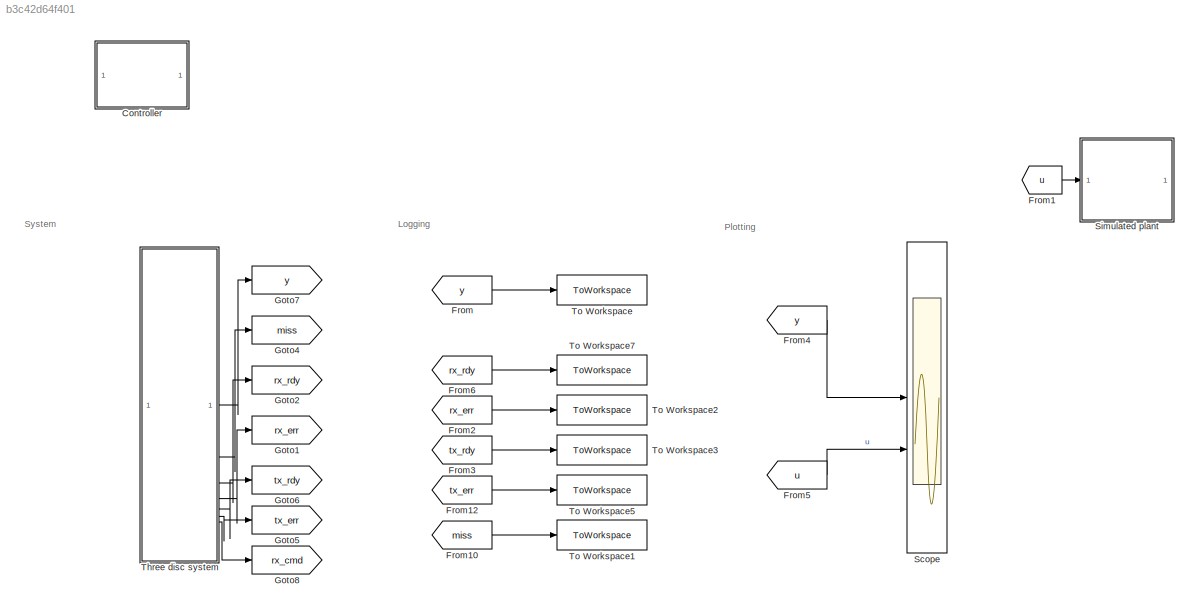
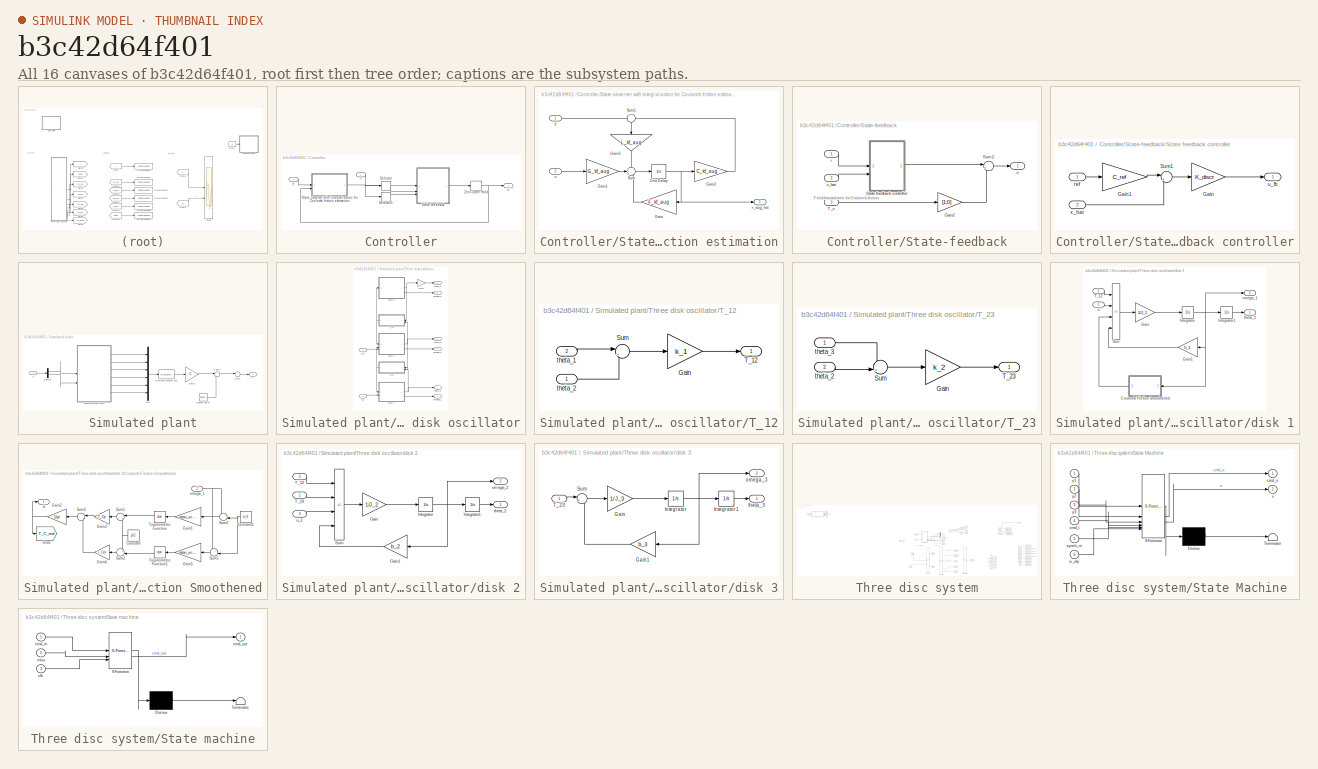
[diagram: thumbnail index - all 16 canvases of the model, root first then tree order]
MODEL slx_b3c42d64f401
KIND model
CONFIG AbsTol = auto
CONFIG EnableMultiTasking = off
CONFIG FixedStep = 0.001
CONFIG MaxStep = auto
CONFIG MinStep = auto
CONFIG RelTol = 1e-3
CONFIG SampleTimeConstraint = Unconstrained
CONFIG SolverName = FixedStepAuto
CONFIG StartTime = 0.0
CONFIG StopTime = 5
BLOCK [SubSystem] Controller
  Commented = on
BLOCK [Selector] Controller/Selector
  IndexOptions = Index vector (dialog)
  Indices = [1:6]
  InputPortWidth = 7
  OutputSizes = 1
BLOCK [Selector] Controller/Selector1
  IndexOptions = Index vector (dialog)
  Indices = [7]
  InputPortWidth = 7
  OutputSizes = 1
BLOCK [SubSystem] Controller/State observer with integral action for Coulomb friction estimation
BLOCK [Gain] Controller/State observer with integral action for Coulomb friction estimation/Gain
  Gain = F_kf_aug
  Multiplication = Matrix(K*u) (u vector)
BLOCK [Gain] Controller/State observer with integral action for Coulomb friction estimation/Gain1
  Gain = G_kf_aug
  Multiplication = Matrix(K*u) (u vector)
BLOCK [Gain] Controller/State observer with integral action for Coulomb friction estimation/Gain2
  Gain = C_kf_aug
  Multiplication = Matrix(K*u) (u vector)
BLOCK [Gain] Controller/State observer with integral action for Coulomb friction estimation/Gain3
  Gain = L_kf_aug
  Multiplication = Matrix(K*u) (u vector)
  NameLocation = left
BLOCK [Sum] Controller/State observer with integral action for Coulomb friction estimation/Sum
  Inputs = +++
BLOCK [Sum] Controller/State observer with integral action for Coulomb friction estimation/Sum1
  Inputs = +-
  NameLocation = left
BLOCK [UnitDelay] Controller/State observer with integral action for Coulomb friction estimation/Unit Delay
  HasFrameUpgradeWarning = on
  SampleTime = T_s
BLOCK [Inport] Controller/State observer with integral action for Coulomb friction estimation/u
  Port = 2
BLOCK [Outport] Controller/State observer with integral action for Coulomb friction estimation/x_aug_hat
  VectorParamsAs1DForOutWhenUnconnected = off
BLOCK [Inport] Controller/State observer with integral action for Coulomb friction estimation/y
BLOCK [SubSystem] Controller/State-feedback
BLOCK [Gain] Controller/State-feedback/Gain2
  Gain = [1;0]
  NameLocation = top
BLOCK [SubSystem] Controller/State-feedback/State feedback controller
BLOCK [Gain] Controller/State-feedback/State feedback controller/Gain
  Gain = K_discr
  Multiplication = Matrix(K*u) (u vector)
  NameLocation = top
BLOCK [Gain] Controller/State-feedback/State feedback controller/Gain1
  Gain = C_ref
  Multiplication = Matrix(K*u) (u vector)
BLOCK [Sum] Controller/State-feedback/State feedback controller/Sum1
  Inputs = |+-
BLOCK [Inport] Controller/State-feedback/State feedback controller/ref
BLOCK [Outport] Controller/State-feedback/State feedback controller/u_fb
BLOCK [Inport] Controller/State-feedback/State feedback controller/x_hat
  Port = 2
BLOCK [Sum] Controller/State-feedback/Sum2
  Inputs = |+-
BLOCK [Inport] Controller/State-feedback/T_c
  Port = 3
BLOCK [Inport] Controller/State-feedback/r
BLOCK [Outport] Controller/State-feedback/u
  VectorParamsAs1DForOutWhenUnconnected = off
BLOCK [Inport] Controller/State-feedback/x_hat
  Port = 2
BLOCK [ZeroOrderHold] Controller/Zero-Order Hold
  SampleTime = T_s
BLOCK [Inport] Controller/r
BLOCK [Outport] Controller/u
BLOCK [Inport] Controller/y
  Port = 2
BLOCK [From] From
  Commented = on
  GotoTag = y
BLOCK [From] From1
  Commented = on
  GotoTag = u
BLOCK [From] From10
  Commented = on
  GotoTag = miss
BLOCK [From] From12
  Commented = on
  GotoTag = tx_err
BLOCK [From] From2
  Commented = on
  GotoTag = rx_err
BLOCK [From] From3
  Commented = on
  GotoTag = tx_rdy
BLOCK [From] From4
  GotoTag = y
BLOCK [From] From5
  GotoTag = u
BLOCK [From] From6
  Commented = on
  GotoTag = rx_rdy
BLOCK [Goto] Goto1
  GotoTag = rx_err
BLOCK [Goto] Goto2
  GotoTag = rx_rdy
BLOCK [Goto] Goto4
  GotoTag = miss
BLOCK [Goto] Goto5
  GotoTag = tx_err
BLOCK [Goto] Goto6
  GotoTag = tx_rdy
BLOCK [Goto] Goto7
  GotoTag = y
BLOCK [Goto] Goto8
  GotoTag = rx_cmd
BLOCK [Scope] Scope
  Commented = on
  Floating = off
  NumInputPorts = 2
  ScopeSpecificationString = Simulink.scopes.TimeScopeBlockCfg('CurrentConfiguration', extmgr.ConfigurationSet(extmgr.Configuration('Core','General UI',true),extmgr.Configuration('Core','Source UI',true),extmgr.Configuration('Sources','WiredSimulink',true,'SampleTime','0.04'),extmgr.Configuration('Visuals','Time Domain',true,'SerializedDisplays',{struct('MinYLimReal','-17258.6125','MaxYLimReal','155326.5125','YLabelReal','','...<+1604ch>
BLOCK [SubSystem] Simulated plant
  Commented = on
BLOCK [Demux] Simulated plant/Demux
  Outputs = 2
BLOCK [DiscreteTransferFcn] Simulated plant/Discrete Transfer Fcn
  Denominator = [1]
  InputPortMap = u0
  SampleTime = T_s
BLOCK [Gain] Simulated plant/Gain2
  Gain = C
  Multiplication = Matrix(K*u) (u vector)
BLOCK [Mux] Simulated plant/Mux
  DisplayOption = bar
  Inputs = 6
BLOCK [RandomNumber] Simulated plant/Sensor noise
  Mean = zeros(3,1)
  SampleTime = T_s
  Variance = diag(sigma_meas^2)
BLOCK [Sum] Simulated plant/Sum2
  Inputs = |++
BLOCK [Sum] Simulated plant/Sum4
  Inputs = |++
BLOCK [SubSystem] Simulated plant/Three disk oscillator
BLOCK [Gain] Simulated plant/Three disk oscillator/Gain
BLOCK [SubSystem] Simulated plant/Three disk oscillator/T_12
BLOCK [Gain] Simulated plant/Three disk oscillator/T_12/Gain
  Gain = k_1
BLOCK [Sum] Simulated plant/Three disk oscillator/T_12/Sum
  Inputs = |+-
BLOCK [Outport] Simulated plant/Three disk oscillator/T_12/T_12
  VectorParamsAs1DForOutWhenUnconnected = off
BLOCK [Inport] Simulated plant/Three disk oscillator/T_12/theta_1
  Port = 2
BLOCK [Inport] Simulated plant/Three disk oscillator/T_12/theta_2
BLOCK [SubSystem] Simulated plant/Three disk oscillator/T_23
BLOCK [Gain] Simulated plant/Three disk oscillator/T_23/Gain
  Gain = k_2
BLOCK [Sum] Simulated plant/Three disk oscillator/T_23/Sum
  Inputs = -+|
BLOCK [Outport] Simulated plant/Three disk oscillator/T_23/T_23
  VectorParamsAs1DForOutWhenUnconnected = off
BLOCK [Inport] Simulated plant/Three disk oscillator/T_23/theta_2
  Port = 2
BLOCK [Inport] Simulated plant/Three disk oscillator/T_23/theta_3
BLOCK [SubSystem] Simulated plant/Three disk oscillator/disk 1
BLOCK [SubSystem] Simulated plant/Three disk oscillator/disk 1/Coulomb Friction Smoothened
BLOCK [Constant] Simulated plant/Three disk oscillator/disk 1/Coulomb Friction Smoothened/Constant
  Value = pi/2
BLOCK [Constant] Simulated plant/Three disk oscillator/disk 1/Coulomb Friction Smoothened/Constant1
  Value = w_th
BLOCK [Gain] Simulated plant/Three disk oscillator/disk 1/Coulomb Friction Smoothened/Gain1
  Gain = atan_scale
BLOCK [Gain] Simulated plant/Three disk oscillator/disk 1/Coulomb Friction Smoothened/Gain2
  Gain = 1/pi
BLOCK [Gain] Simulated plant/Three disk oscillator/disk 1/Coulomb Friction Smoothened/Gain3
  Gain = T_Cp
BLOCK [Gain] Simulated plant/Three disk oscillator/disk 1/Coulomb Friction Smoothened/Gain4
  Gain = T_Cm
BLOCK [Gain] Simulated plant/Three disk oscillator/disk 1/Coulomb Friction Smoothened/Gain5
  Gain = atan_scale
BLOCK [Goto] Simulated plant/Three disk oscillator/disk 1/Coulomb Friction Smoothened/Goto
  GotoTag = T_C_real
  TagVisibility = global
BLOCK [Sum] Simulated plant/Three disk oscillator/disk 1/Coulomb Friction Smoothened/Sum1
  Inputs = |++
BLOCK [Sum] Simulated plant/Three disk oscillator/disk 1/Coulomb Friction Smoothened/Sum2
  Inputs = +-|
BLOCK [Sum] Simulated plant/Three disk oscillator/disk 1/Coulomb Friction Smoothened/Sum3
  Inputs = |+-
BLOCK [Sum] Simulated plant/Three disk oscillator/disk 1/Coulomb Friction Smoothened/Sum4
  Inputs = +-|
BLOCK [Sum] Simulated plant/Three disk oscillator/disk 1/Coulomb Friction Smoothened/Sum5
  Inputs = ++|
BLOCK [Trigonometry] Simulated plant/Three disk oscillator/disk 1/Coulomb Friction Smoothened/Trigonometric Function
  Operator = atan
BLOCK [Trigonometry] Simulated plant/Three disk oscillator/disk 1/Coulomb Friction Smoothened/Trigonometric Function1
  Operator = atan
BLOCK [Outport] Simulated plant/Three disk oscillator/disk 1/Coulomb Friction Smoothened/d
  VectorParamsAs1DForOutWhenUnconnected = off
BLOCK [Inport] Simulated plant/Three disk oscillator/disk 1/Coulomb Friction Smoothened/omega_1
BLOCK [Gain] Simulated plant/Three disk oscillator/disk 1/Gain
  Gain = 1/J_1
BLOCK [Gain] Simulated plant/Three disk oscillator/disk 1/Gain1
  Gain = b_1
BLOCK [Integrator] Simulated plant/Three disk oscillator/disk 1/Integrator
  InitialCondition = x_0(2)
BLOCK [Integrator] Simulated plant/Three disk oscillator/disk 1/Integrator1
  InitialCondition = x_0(1)
BLOCK [Sum] Simulated plant/Three disk oscillator/disk 1/Sum
  IconShape = rectangular
  Inputs = -+--
BLOCK [Inport] Simulated plant/Three disk oscillator/disk 1/T_12
BLOCK [Outport] Simulated plant/Three disk oscillator/disk 1/omega_1
  Port = 2
  VectorParamsAs1DForOutWhenUnconnected = off
BLOCK [Outport] Simulated plant/Three disk oscillator/disk 1/theta_1
  VectorParamsAs1DForOutWhenUnconnected = off
BLOCK [Inport] Simulated plant/Three disk oscillator/disk 1/u
  Port = 2
BLOCK [SubSystem] Simulated plant/Three disk oscillator/disk 2
BLOCK [Gain] Simulated plant/Three disk oscillator/disk 2/Gain
  Gain = 1/J_2
BLOCK [Gain] Simulated plant/Three disk oscillator/disk 2/Gain1
  Gain = b_2
BLOCK [Integrator] Simulated plant/Three disk oscillator/disk 2/Integrator
  InitialCondition = x_0(4)
BLOCK [Integrator] Simulated plant/Three disk oscillator/disk 2/Integrator1
  InitialCondition = x_0(3)
BLOCK [Sum] Simulated plant/Three disk oscillator/disk 2/Sum
  IconShape = rectangular
  Inputs = +-+-
BLOCK [Inport] Simulated plant/Three disk oscillator/disk 2/T_12
  Port = 2
BLOCK [Inport] Simulated plant/Three disk oscillator/disk 2/T_23
BLOCK [Outport] Simulated plant/Three disk oscillator/disk 2/omega_2
  Port = 2
  VectorParamsAs1DForOutWhenUnconnected = off
BLOCK [Outport] Simulated plant/Three disk oscillator/disk 2/theta_2
  VectorParamsAs1DForOutWhenUnconnected = off
BLOCK [Inport] Simulated plant/Three disk oscillator/disk 2/u_2
  Port = 3
BLOCK [SubSystem] Simulated plant/Three disk oscillator/disk 3
BLOCK [Gain] Simulated plant/Three disk oscillator/disk 3/Gain
  Gain = 1/J_3
BLOCK [Gain] Simulated plant/Three disk oscillator/disk 3/Gain1
  Gain = b_3
BLOCK [Integrator] Simulated plant/Three disk oscillator/disk 3/Integrator
  InitialCondition = x_0(6)
BLOCK [Integrator] Simulated plant/Three disk oscillator/disk 3/Integrator1
  InitialCondition = x_0(5)
BLOCK [Sum] Simulated plant/Three disk oscillator/disk 3/Sum
  Inputs = |+-
BLOCK [Inport] Simulated plant/Three disk oscillator/disk 3/T_23
BLOCK [Outport] Simulated plant/Three disk oscillator/disk 3/omega_3
  Port = 2
  VectorParamsAs1DForOutWhenUnconnected = off
BLOCK [Outport] Simulated plant/Three disk oscillator/disk 3/theta_3
  VectorParamsAs1DForOutWhenUnconnected = off
BLOCK [Outport] Simulated plant/Three disk oscillator/omega_1
  Port = 2
  VectorParamsAs1DForOutWhenUnconnected = off
BLOCK [Outport] Simulated plant/Three disk oscillator/omega_2
  Port = 4
  VectorParamsAs1DForOutWhenUnconnected = off
BLOCK [Outport] Simulated plant/Three disk oscillator/omega_3
  Port = 6
  VectorParamsAs1DForOutWhenUnconnected = off
BLOCK [Outport] Simulated plant/Three disk oscillator/theta_1
  VectorParamsAs1DForOutWhenUnconnected = off
BLOCK [Outport] Simulated plant/Three disk oscillator/theta_2
  Port = 3
  VectorParamsAs1DForOutWhenUnconnected = off
BLOCK [Outport] Simulated plant/Three disk oscillator/theta_3
  Port = 5
  VectorParamsAs1DForOutWhenUnconnected = off
BLOCK [Inport] Simulated plant/Three disk oscillator/u_1
BLOCK [Inport] Simulated plant/Three disk oscillator/u_2
  Port = 2
BLOCK [Inport] Simulated plant/u
BLOCK [Outport] Simulated plant/y
  VectorParamsAs1DForOutWhenUnconnected = off
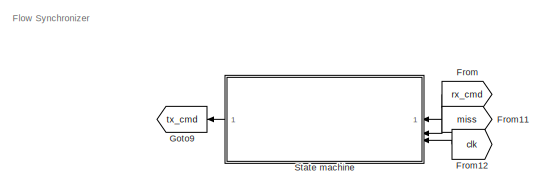
[diagram: Three disc system - part 1/3, top left region]
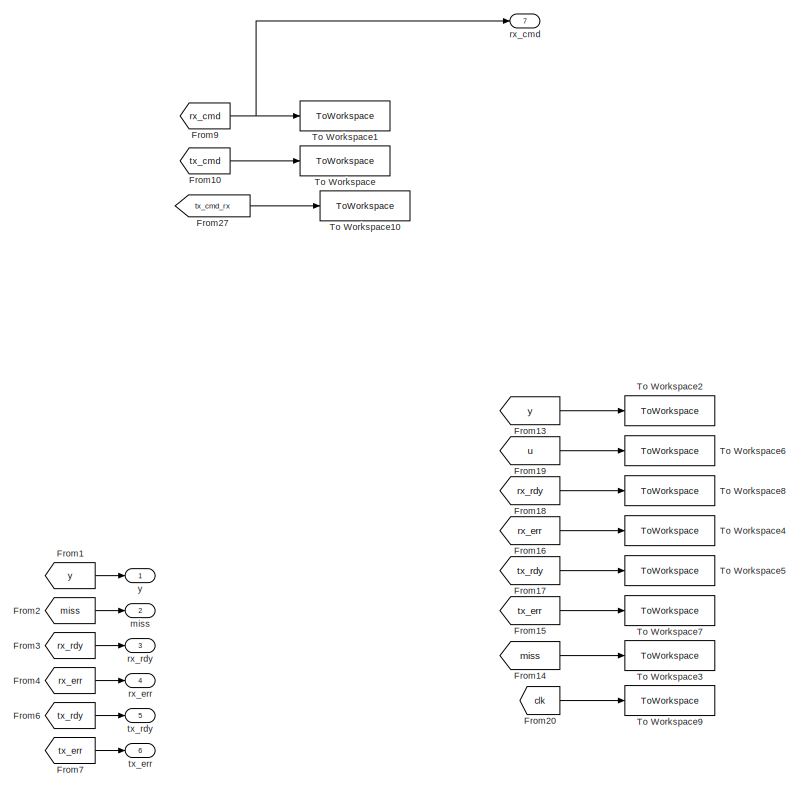
[diagram: Three disc system - part 2/3, middle right region]
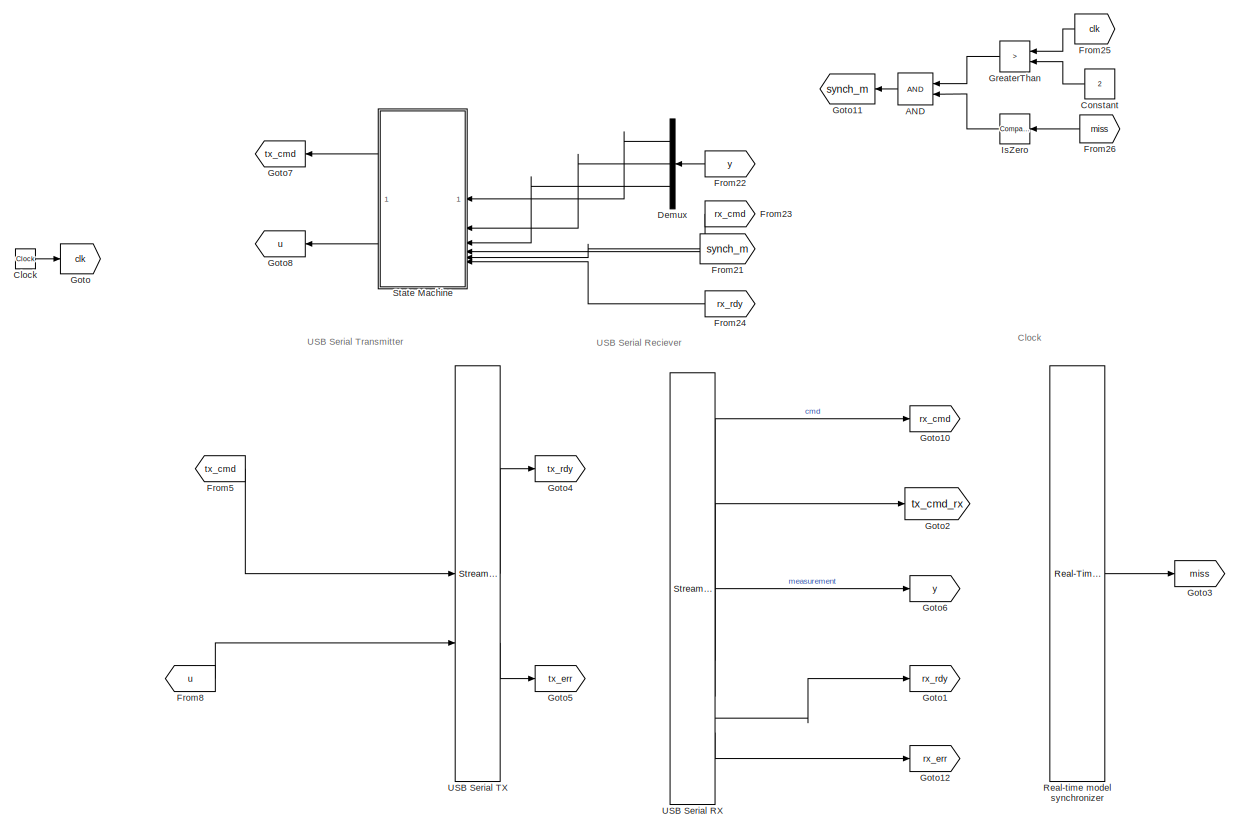
[diagram: Three disc system - part 3/3, central region]
BLOCK [SubSystem] Three disc system
BLOCK [Logic] Three disc system/AND
  AllPortsSameDT = off
  IconShape = distinctive
  NameLocation = top
  OutDataTypeStr = boolean
BLOCK [Clock] Three disc system/Clock
BLOCK [Constant] Three disc system/Constant
  NameLocation = top
  Value = 2
BLOCK [Demux] Three disc system/Demux
  NameLocation = top
  Outputs = 3
BLOCK [From] Three disc system/From
  Commented = on
  GotoTag = rx_cmd
  NameLocation = top
BLOCK [From] Three disc system/From1
  GotoTag = y
BLOCK [From] Three disc system/From10
  GotoTag = tx_cmd
BLOCK [From] Three disc system/From11
  Commented = on
  GotoTag = miss
  NameLocation = top
BLOCK [From] Three disc system/From12
  Commented = on
  GotoTag = clk
  NameLocation = top
BLOCK [From] Three disc system/From13
  GotoTag = y
BLOCK [From] Three disc system/From14
  GotoTag = miss
BLOCK [From] Three disc system/From15
  GotoTag = tx_err
BLOCK [From] Three disc system/From16
  GotoTag = rx_err
BLOCK [From] Three disc system/From17
  GotoTag = tx_rdy
BLOCK [From] Three disc system/From18
  GotoTag = rx_rdy
BLOCK [From] Three disc system/From19
  GotoTag = u
BLOCK [From] Three disc system/From2
  GotoTag = miss
BLOCK [From] Three disc system/From20
  GotoTag = clk
BLOCK [From] Three disc system/From21
  GotoTag = synch_m
BLOCK [From] Three disc system/From22
  GotoTag = y
  NameLocation = top
BLOCK [From] Three disc system/From23
  GotoTag = rx_cmd
  NameLocation = top
BLOCK [From] Three disc system/From24
  GotoTag = rx_rdy
  NameLocation = top
BLOCK [From] Three disc system/From25
  GotoTag = clk
  NameLocation = top
BLOCK [From] Three disc system/From26
  GotoTag = miss
  NameLocation = top
BLOCK [From] Three disc system/From27
  GotoTag = tx_cmd_rx
BLOCK [From] Three disc system/From3
  GotoTag = rx_rdy
BLOCK [From] Three disc system/From4
  GotoTag = rx_err
BLOCK [From] Three disc system/From5
  GotoTag = tx_cmd
BLOCK [From] Three disc system/From6
  GotoTag = tx_rdy
BLOCK [From] Three disc system/From7
  GotoTag = tx_err
BLOCK [From] Three disc system/From8
  GotoTag = u
BLOCK [From] Three disc system/From9
  GotoTag = rx_cmd
BLOCK [Goto] Three disc system/Goto
  GotoTag = clk
BLOCK [Goto] Three disc system/Goto1
  GotoTag = rx_rdy
BLOCK [Goto] Three disc system/Goto10
  GotoTag = rx_cmd
BLOCK [Goto] Three disc system/Goto11
  GotoTag = synch_m
  NameLocation = top
BLOCK [Goto] Three disc system/Goto12
  GotoTag = rx_err
BLOCK [Goto] Three disc system/Goto2
  GotoTag = tx_cmd_rx
BLOCK [Goto] Three disc system/Goto3
  GotoTag = miss
BLOCK [Goto] Three disc system/Goto4
  GotoTag = tx_rdy
BLOCK [Goto] Three disc system/Goto5
  GotoTag = tx_err
BLOCK [Goto] Three disc system/Goto6
  GotoTag = y
BLOCK [Goto] Three disc system/Goto7
  GotoTag = tx_cmd
  NameLocation = top
BLOCK [Goto] Three disc system/Goto8
  GotoTag = u
  NameLocation = top
BLOCK [Goto] Three disc system/Goto9
  Commented = on
  GotoTag = tx_cmd
  NameLocation = top
BLOCK [RelationalOperator] Three disc system/GreaterThan
  InputSameDT = off
  NameLocation = top
  Operator = >
  OutDataTypeStr = boolean
  RndMeth = Simplest
BLOCK [Reference] Three disc system/IsZero  REF=simulink/Logic and Bit
Operations/Compare
To Zero
  LibrarySourceBlock = simulink/Quick Insert/Logic and Bit\nOperations/IsZero
  NameLocation = top
  SourceBlock = simulink/Logic and Bit\nOperations/Compare\nTo Zero
  SourceType = Compare To Zero
BLOCK [Reference] Three disc system/Real-time model synchronizer  REF=sldrtlib/Real-Time
Synchronization
  SourceBlock = sldrtlib/Real-Time\nSynchronization
  SourceType = Simulink Desktop Real-Time Synchronization
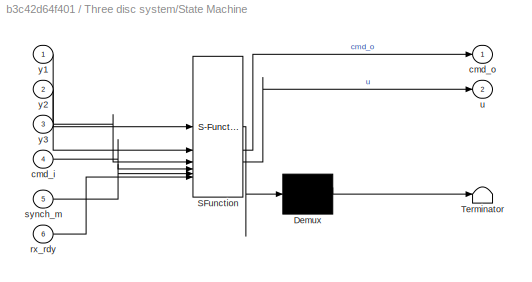
BLOCK [SubSystem] Three disc system/State Machine
  ErrorFcn = Stateflow.Translate.translate
  NameLocation = top
  PermitHierarchicalResolution = ExplicitOnly
  SFBlockType = MATLAB Function
  TreatAsAtomicUnit = on
BLOCK [Demux] Three disc system/State Machine/ Demux 
  Outputs = 1
BLOCK [S-Function] Three disc system/State Machine/ SFunction 
  EnableBusSupport = on
  FunctionName = sf_sfun
  PortCounts = [6 3]
  SFcnIsStateOwnerBlock = off
  SFunctionDeploymentMode = off
  Tag = Stateflow S-Function 1
BLOCK [Terminator] Three disc system/State Machine/ Terminator 
BLOCK [Inport] Three disc system/State Machine/cmd_i
  Port = 4
BLOCK [Outport] Three disc system/State Machine/cmd_o
BLOCK [Inport] Three disc system/State Machine/rx_rdy
  Port = 6
BLOCK [Inport] Three disc system/State Machine/synch_m
  Port = 5
BLOCK [Outport] Three disc system/State Machine/u
  Port = 2
BLOCK [Inport] Three disc system/State Machine/y1
BLOCK [Inport] Three disc system/State Machine/y2
  Port = 2
BLOCK [Inport] Three disc system/State Machine/y3
  Port = 3
BLOCK [SubSystem] Three disc system/State machine
  Commented = on
  ErrorFcn = Stateflow.Translate.translate
  NameLocation = top
  PermitHierarchicalResolution = ExplicitOnly
  SFBlockType = MATLAB Function
  TreatAsAtomicUnit = on
BLOCK [Demux] Three disc system/State machine/ Demux 
  Outputs = 1
BLOCK [S-Function] Three disc system/State machine/ SFunction 
  EnableBusSupport = on
  FunctionName = sf_sfun
  PortCounts = [3 2]
  SFcnIsStateOwnerBlock = off
  SFunctionDeploymentMode = off
  Tag = Stateflow S-Function 2
BLOCK [Terminator] Three disc system/State machine/ Terminator 
BLOCK [Inport] Three disc system/State machine/clk
  Port = 3
BLOCK [Inport] Three disc system/State machine/cmd_in
BLOCK [Outport] Three disc system/State machine/cmd_out
BLOCK [Inport] Three disc system/State machine/miss
  Port = 2
BLOCK [ToWorkspace] Three disc system/To Workspace
  FixptAsFi = on
  MaxDataPoints = inf
  SampleTime = 0.001
  VariableName = tx_cmd
BLOCK [ToWorkspace] Three disc system/To Workspace1
  FixptAsFi = on
  MaxDataPoints = inf
  SampleTime = 0.001
  VariableName = rx_cmd
BLOCK [ToWorkspace] Three disc system/To Workspace10
  FixptAsFi = on
  MaxDataPoints = inf
  SampleTime = 0.001
  VariableName = tx_cmd_rx
BLOCK [ToWorkspace] Three disc system/To Workspace2
  FixptAsFi = on
  MaxDataPoints = inf
  SampleTime = 0.001
  VariableName = y
BLOCK [ToWorkspace] Three disc system/To Workspace3
  FixptAsFi = on
  MaxDataPoints = inf
  SampleTime = 0.001
  VariableName = miss
BLOCK [ToWorkspace] Three disc system/To Workspace4
  FixptAsFi = on
  MaxDataPoints = inf
  SampleTime = 0.001
  VariableName = rx_err
BLOCK [ToWorkspace] Three disc system/To Workspace5
  FixptAsFi = on
  MaxDataPoints = inf
  SampleTime = 0.001
  VariableName = tx_rdy
BLOCK [ToWorkspace] Three disc system/To Workspace6
  FixptAsFi = on
  MaxDataPoints = inf
  SampleTime = 0.001
  VariableName = u
BLOCK [ToWorkspace] Three disc system/To Workspace7
  FixptAsFi = on
  MaxDataPoints = inf
  SampleTime = 0.001
  VariableName = tx_err
BLOCK [ToWorkspace] Three disc system/To Workspace8
  FixptAsFi = on
  MaxDataPoints = inf
  SampleTime = 0.001
  VariableName = rx_rdy
BLOCK [ToWorkspace] Three disc system/To Workspace9
  FixptAsFi = on
  MaxDataPoints = inf
  SampleTime = 0.001
  VariableName = clk
BLOCK [Reference] Three disc system/USB Serial RX  REF=sldrtlib/Stream Input
  AttributesFormatString = Serial Port [8]
  SourceBlock = sldrtlib/Stream Input
  SourceType = Simulink Desktop Real-Time Stream Input
BLOCK [Reference] Three disc system/USB Serial TX  REF=sldrtlib/Stream Output
  AttributesFormatString = Serial Port [8]
  SourceBlock = sldrtlib/Stream Output
  SourceType = Simulink Desktop Real-Time Stream Output
BLOCK [Outport] Three disc system/miss
  Port = 2
BLOCK [Outport] Three disc system/rx_cmd
  Port = 7
BLOCK [Outport] Three disc system/rx_err
  Port = 4
BLOCK [Outport] Three disc system/rx_rdy
  Port = 3
BLOCK [Outport] Three disc system/tx_err
  Port = 6
BLOCK [Outport] Three disc system/tx_rdy
  Port = 5
BLOCK [Outport] Three disc system/y
BLOCK [ToWorkspace] To Workspace
  Commented = on
  FixptAsFi = on
  MaxDataPoints = inf
  SampleTime = 0.001
  VariableName = y
BLOCK [ToWorkspace] To Workspace1
  Commented = on
  FixptAsFi = on
  MaxDataPoints = inf
  SampleTime = 0.001
  VariableName = miss
BLOCK [ToWorkspace] To Workspace2
  Commented = on
  FixptAsFi = on
  MaxDataPoints = inf
  SampleTime = 0.001
  VariableName = rx_err
BLOCK [ToWorkspace] To Workspace3
  Commented = on
  FixptAsFi = on
  MaxDataPoints = inf
  SampleTime = 0.001
  VariableName = tx_rdy
BLOCK [ToWorkspace] To Workspace5
  Commented = on
  FixptAsFi = on
  MaxDataPoints = inf
  SampleTime = 0.001
  VariableName = tx_err
BLOCK [ToWorkspace] To Workspace7
  Commented = on
  FixptAsFi = on
  MaxDataPoints = inf
  SampleTime = 0.001
  VariableName = rx_rdy
ANNOTATION (root): Logging
ANNOTATION (root): Plotting
ANNOTATION (root): System
ANNOTATION Controller/State-feedback: Feed-forward term for Coulomb friction
ANNOTATION Three disc system: Clock
ANNOTATION Three disc system: Flow Synchronizer
ANNOTATION Three disc system: USB Serial Reciever
ANNOTATION Three disc system: USB Serial Transmitter
LINE Controller/Selector1:1 -> Controller/State-feedback:3
LINE Controller/Selector:1 -> Controller/State-feedback:2
LINE Controller/State observer with integral action for Coulomb friction estimation/Gain1:1 -> Controller/State observer with integral action for Coulomb friction estimation/Sum:2
LINE Controller/State observer with integral action for Coulomb friction estimation/Gain2:1 -> Controller/State observer with integral action for Coulomb friction estimation/Sum1:2
LINE Controller/State observer with integral action for Coulomb friction estimation/Gain3:1 -> Controller/State observer with integral action for Coulomb friction estimation/Sum:1
LINE Controller/State observer with integral action for Coulomb friction estimation/Gain:1 -> Controller/State observer with integral action for Coulomb friction estimation/Sum:3
LINE Controller/State observer with integral action for Coulomb friction estimation/Sum1:1 -> Controller/State observer with integral action for Coulomb friction estimation/Gain3:1
LINE Controller/State observer with integral action for Coulomb friction estimation/Sum:1 -> Controller/State observer with integral action for Coulomb friction estimation/Unit Delay:1
NET Controller/State observer with integral action for Coulomb friction estimation/Unit Delay:1 -> Controller/State observer with integral action for Coulomb friction estimation/Gain2:1, Controller/State observer with integral action for Coulomb friction estimation/Gain:1, Controller/State observer with integral action for Coulomb friction estimation/x_aug_hat:1
LINE Controller/State observer with integral action for Coulomb friction estimation/u:1 -> Controller/State observer with integral action for Coulomb friction estimation/Gain1:1
LINE Controller/State observer with integral action for Coulomb friction estimation/y:1 -> Controller/State observer with integral action for Coulomb friction estimation/Sum1:1
NET Controller/State observer with integral action for Coulomb friction estimation:1 -> Controller/Selector1:1, Controller/Selector:1
LINE Controller/State-feedback/Gain2:1 -> Controller/State-feedback/Sum2:2
LINE Controller/State-feedback/State feedback controller/Gain1:1 -> Controller/State-feedback/State feedback controller/Sum1:1
LINE Controller/State-feedback/State feedback controller/Gain:1 -> Controller/State-feedback/State feedback controller/u_fb:1
LINE Controller/State-feedback/State feedback controller/Sum1:1 -> Controller/State-feedback/State feedback controller/Gain:1
LINE Controller/State-feedback/State feedback controller/ref:1 -> Controller/State-feedback/State feedback controller/Gain1:1
LINE Controller/State-feedback/State feedback controller/x_hat:1 -> Controller/State-feedback/State feedback controller/Sum1:2
LINE Controller/State-feedback/State feedback controller:1 -> Controller/State-feedback/Sum2:1
LINE Controller/State-feedback/Sum2:1 -> Controller/State-feedback/u:1
LINE Controller/State-feedback/T_c:1 -> Controller/State-feedback/Gain2:1
LINE Controller/State-feedback/r:1 -> Controller/State-feedback/State feedback controller:1
LINE Controller/State-feedback/x_hat:1 -> Controller/State-feedback/State feedback controller:2
LINE Controller/State-feedback:1 -> Controller/Zero-Order Hold:1
NET Controller/Zero-Order Hold:1 -> Controller/State observer with integral action for Coulomb friction estimation:2, Controller/u:1
LINE Controller/r:1 -> Controller/State-feedback:1
LINE Controller/y:1 -> Controller/State observer with integral action for Coulomb friction estimation:1
LINE From10:1 -> To Workspace1:1
LINE From12:1 -> To Workspace5:1
LINE From1:1 -> Simulated plant:1
LINE From2:1 -> To Workspace2:1
LINE From3:1 -> To Workspace3:1
LINE From4:1 -> Scope:1
LINE From5:1 -> Scope:2
LINE From6:1 -> To Workspace7:1
LINE From:1 -> To Workspace:1
LINE Simulated plant/Demux:1 -> Simulated plant/Three disk oscillator:1
LINE Simulated plant/Demux:2 -> Simulated plant/Three disk oscillator:2
LINE Simulated plant/Discrete Transfer Fcn:1 -> Simulated plant/Gain2:1
LINE Simulated plant/Gain2:1 -> Simulated plant/Sum4:1
LINE Simulated plant/Mux:1 -> Simulated plant/Discrete Transfer Fcn:1
LINE Simulated plant/Sensor noise:1 -> Simulated plant/Sum4:2
LINE Simulated plant/Sum2:1 -> Simulated plant/y:1
LINE Simulated plant/Sum4:1 -> Simulated plant/Sum2:1
LINE Simulated plant/Three disk oscillator/Gain:1 -> Simulated plant/Three disk oscillator/theta_3:1
LINE Simulated plant/Three disk oscillator/T_12/Gain:1 -> Simulated plant/Three disk oscillator/T_12/T_12:1
LINE Simulated plant/Three disk oscillator/T_12/Sum:1 -> Simulated plant/Three disk oscillator/T_12/Gain:1
LINE Simulated plant/Three disk oscillator/T_12/theta_1:1 -> Simulated plant/Three disk oscillator/T_12/Sum:1
LINE Simulated plant/Three disk oscillator/T_12/theta_2:1 -> Simulated plant/Three disk oscillator/T_12/Sum:2
NET Simulated plant/Three disk oscillator/T_12:1 -> Simulated plant/Three disk oscillator/disk 1:1, Simulated plant/Three disk oscillator/disk 2:2
LINE Simulated plant/Three disk oscillator/T_23/Gain:1 -> Simulated plant/Three disk oscillator/T_23/T_23:1
LINE Simulated plant/Three disk oscillator/T_23/Sum:1 -> Simulated plant/Three disk oscillator/T_23/Gain:1
LINE Simulated plant/Three disk oscillator/T_23/theta_2:1 -> Simulated plant/Three disk oscillator/T_23/Sum:2
LINE Simulated plant/Three disk oscillator/T_23/theta_3:1 -> Simulated plant/Three disk oscillator/T_23/Sum:1
NET Simulated plant/Three disk oscillator/T_23:1 -> Simulated plant/Three disk oscillator/disk 2:1, Simulated plant/Three disk oscillator/disk 3:1
NET Simulated plant/Three disk oscillator/disk 1/Coulomb Friction Smoothened/Constant1:1 -> Simulated plant/Three disk oscillator/disk 1/Coulomb Friction Smoothened/Sum4:2, Simulated plant/Three disk oscillator/disk 1/Coulomb Friction Smoothened/Sum5:2
NET Simulated plant/Three disk oscillator/disk 1/Coulomb Friction Smoothened/Constant:1 -> Simulated plant/Three disk oscillator/disk 1/Coulomb Friction Smoothened/Sum1:2, Simulated plant/Three disk oscillator/disk 1/Coulomb Friction Smoothened/Sum2:1
LINE Simulated plant/Three disk oscillator/disk 1/Coulomb Friction Smoothened/Gain1:1 -> Simulated plant/Three disk oscillator/disk 1/Coulomb Friction Smoothened/Trigonometric Function:1
NET Simulated plant/Three disk oscillator/disk 1/Coulomb Friction Smoothened/Gain2:1 -> Simulated plant/Three disk oscillator/disk 1/Coulomb Friction Smoothened/Goto:1, Simulated plant/Three disk oscillator/disk 1/Coulomb Friction Smoothened/d:1
LINE Simulated plant/Three disk oscillator/disk 1/Coulomb Friction Smoothened/Gain3:1 -> Simulated plant/Three disk oscillator/disk 1/Coulomb Friction Smoothened/Sum3:1
LINE Simulated plant/Three disk oscillator/disk 1/Coulomb Friction Smoothened/Gain4:1 -> Simulated plant/Three disk oscillator/disk 1/Coulomb Friction Smoothened/Sum3:2
LINE Simulated plant/Three disk oscillator/disk 1/Coulomb Friction Smoothened/Gain5:1 -> Simulated plant/Three disk oscillator/disk 1/Coulomb Friction Smoothened/Trigonometric Function1:1
LINE Simulated plant/Three disk oscillator/disk 1/Coulomb Friction Smoothened/Sum1:1 -> Simulated plant/Three disk oscillator/disk 1/Coulomb Friction Smoothened/Gain3:1
LINE Simulated plant/Three disk oscillator/disk 1/Coulomb Friction Smoothened/Sum2:1 -> Simulated plant/Three disk oscillator/disk 1/Coulomb Friction Smoothened/Gain4:1
LINE Simulated plant/Three disk oscillator/disk 1/Coulomb Friction Smoothened/Sum3:1 -> Simulated plant/Three disk oscillator/disk 1/Coulomb Friction Smoothened/Gain2:1
LINE Simulated plant/Three disk oscillator/disk 1/Coulomb Friction Smoothened/Sum4:1 -> Simulated plant/Three disk oscillator/disk 1/Coulomb Friction Smoothened/Gain1:1
LINE Simulated plant/Three disk oscillator/disk 1/Coulomb Friction Smoothened/Sum5:1 -> Simulated plant/Three disk oscillator/disk 1/Coulomb Friction Smoothened/Gain5:1
LINE Simulated plant/Three disk oscillator/disk 1/Coulomb Friction Smoothened/Trigonometric Function1:1 -> Simulated plant/Three disk oscillator/disk 1/Coulomb Friction Smoothened/Sum2:2
LINE Simulated plant/Three disk oscillator/disk 1/Coulomb Friction Smoothened/Trigonometric Function:1 -> Simulated plant/Three disk oscillator/disk 1/Coulomb Friction Smoothened/Sum1:1
NET Simulated plant/Three disk oscillator/disk 1/Coulomb Friction Smoothened/omega_1:1 -> Simulated plant/Three disk oscillator/disk 1/Coulomb Friction Smoothened/Sum4:1, Simulated plant/Three disk oscillator/disk 1/Coulomb Friction Smoothened/Sum5:1
LINE Simulated plant/Three disk oscillator/disk 1/Coulomb Friction Smoothened:1 -> Simulated plant/Three disk oscillator/disk 1/Sum:3
LINE Simulated plant/Three disk oscillator/disk 1/Gain1:1 -> Simulated plant/Three disk oscillator/disk 1/Sum:4
LINE Simulated plant/Three disk oscillator/disk 1/Gain:1 -> Simulated plant/Three disk oscillator/disk 1/Integrator:1
LINE Simulated plant/Three disk oscillator/disk 1/Integrator1:1 -> Simulated plant/Three disk oscillator/disk 1/theta_1:1
NET Simulated plant/Three disk oscillator/disk 1/Integrator:1 -> Simulated plant/Three disk oscillator/disk 1/Coulomb Friction Smoothened:1, Simulated plant/Three disk oscillator/disk 1/Gain1:1, Simulated plant/Three disk oscillator/disk 1/Integrator1:1, Simulated plant/Three disk oscillator/disk 1/omega_1:1
LINE Simulated plant/Three disk oscillator/disk 1/Sum:1 -> Simulated plant/Three disk oscillator/disk 1/Gain:1
LINE Simulated plant/Three disk oscillator/disk 1/T_12:1 -> Simulated plant/Three disk oscillator/disk 1/Sum:1
LINE Simulated plant/Three disk oscillator/disk 1/u:1 -> Simulated plant/Three disk oscillator/disk 1/Sum:2
NET Simulated plant/Three disk oscillator/disk 1:1 -> Simulated plant/Three disk oscillator/T_12:2, Simulated plant/Three disk oscillator/theta_1:1
LINE Simulated plant/Three disk oscillator/disk 1:2 -> Simulated plant/Three disk oscillator/omega_1:1
LINE Simulated plant/Three disk oscillator/disk 2/Gain1:1 -> Simulated plant/Three disk oscillator/disk 2/Sum:4
LINE Simulated plant/Three disk oscillator/disk 2/Gain:1 -> Simulated plant/Three disk oscillator/disk 2/Integrator:1
LINE Simulated plant/Three disk oscillator/disk 2/Integrator1:1 -> Simulated plant/Three disk oscillator/disk 2/theta_2:1
NET Simulated plant/Three disk oscillator/disk 2/Integrator:1 -> Simulated plant/Three disk oscillator/disk 2/Gain1:1, Simulated plant/Three disk oscillator/disk 2/Integrator1:1, Simulated plant/Three disk oscillator/disk 2/omega_2:1
LINE Simulated plant/Three disk oscillator/disk 2/Sum:1 -> Simulated plant/Three disk oscillator/disk 2/Gain:1
LINE Simulated plant/Three disk oscillator/disk 2/T_12:1 -> Simulated plant/Three disk oscillator/disk 2/Sum:1
LINE Simulated plant/Three disk oscillator/disk 2/T_23:1 -> Simulated plant/Three disk oscillator/disk 2/Sum:2
LINE Simulated plant/Three disk oscillator/disk 2/u_2:1 -> Simulated plant/Three disk oscillator/disk 2/Sum:3
NET Simulated plant/Three disk oscillator/disk 2:1 -> Simulated plant/Three disk oscillator/T_12:1, Simulated plant/Three disk oscillator/T_23:2, Simulated plant/Three disk oscillator/theta_2:1
LINE Simulated plant/Three disk oscillator/disk 2:2 -> Simulated plant/Three disk oscillator/omega_2:1
LINE Simulated plant/Three disk oscillator/disk 3/Gain1:1 -> Simulated plant/Three disk oscillator/disk 3/Sum:2
LINE Simulated plant/Three disk oscillator/disk 3/Gain:1 -> Simulated plant/Three disk oscillator/disk 3/Integrator:1
LINE Simulated plant/Three disk oscillator/disk 3/Integrator1:1 -> Simulated plant/Three disk oscillator/disk 3/theta_3:1
NET Simulated plant/Three disk oscillator/disk 3/Integrator:1 -> Simulated plant/Three disk oscillator/disk 3/Gain1:1, Simulated plant/Three disk oscillator/disk 3/Integrator1:1, Simulated plant/Three disk oscillator/disk 3/omega_3:1
LINE Simulated plant/Three disk oscillator/disk 3/Sum:1 -> Simulated plant/Three disk oscillator/disk 3/Gain:1
LINE Simulated plant/Three disk oscillator/disk 3/T_23:1 -> Simulated plant/Three disk oscillator/disk 3/Sum:1
NET Simulated plant/Three disk oscillator/disk 3:1 -> Simulated plant/Three disk oscillator/Gain:1, Simulated plant/Three disk oscillator/T_23:1
LINE Simulated plant/Three disk oscillator/disk 3:2 -> Simulated plant/Three disk oscillator/omega_3:1
LINE Simulated plant/Three disk oscillator/u_1:1 -> Simulated plant/Three disk oscillator/disk 1:2
LINE Simulated plant/Three disk oscillator/u_2:1 -> Simulated plant/Three disk oscillator/disk 2:3
LINE Simulated plant/Three disk oscillator:1 -> Simulated plant/Mux:1
LINE Simulated plant/Three disk oscillator:2 -> Simulated plant/Mux:2
LINE Simulated plant/Three disk oscillator:3 -> Simulated plant/Mux:3
LINE Simulated plant/Three disk oscillator:4 -> Simulated plant/Mux:4
LINE Simulated plant/Three disk oscillator:5 -> Simulated plant/Mux:5
LINE Simulated plant/Three disk oscillator:6 -> Simulated plant/Mux:6
LINE Simulated plant/u:1 -> Simulated plant/Demux:1
LINE Three disc system/AND:1 -> Three disc system/Goto11:1
LINE Three disc system/Clock:1 -> Three disc system/Goto:1
LINE Three disc system/Constant:1 -> Three disc system/GreaterThan:2
LINE Three disc system/Demux:1 -> Three disc system/State Machine:1
LINE Three disc system/Demux:2 -> Three disc system/State Machine:2
LINE Three disc system/Demux:3 -> Three disc system/State Machine:3
LINE Three disc system/From10:1 -> Three disc system/To Workspace:1
LINE Three disc system/From11:1 -> Three disc system/State machine:2
LINE Three disc system/From12:1 -> Three disc system/State machine:3
LINE Three disc system/From13:1 -> Three disc system/To Workspace2:1
LINE Three disc system/From14:1 -> Three disc system/To Workspace3:1
LINE Three disc system/From15:1 -> Three disc system/To Workspace7:1
LINE Three disc system/From16:1 -> Three disc system/To Workspace4:1
LINE Three disc system/From17:1 -> Three disc system/To Workspace5:1
LINE Three disc system/From18:1 -> Three disc system/To Workspace8:1
LINE Three disc system/From19:1 -> Three disc system/To Workspace6:1
LINE Three disc system/From1:1 -> Three disc system/y:1
LINE Three disc system/From20:1 -> Three disc system/To Workspace9:1
LINE Three disc system/From21:1 -> Three disc system/State Machine:5
LINE Three disc system/From22:1 -> Three disc system/Demux:1
LINE Three disc system/From23:1 -> Three disc system/State Machine:4
LINE Three disc system/From24:1 -> Three disc system/State Machine:6
LINE Three disc system/From25:1 -> Three disc system/GreaterThan:1
LINE Three disc system/From26:1 -> Three disc system/IsZero:1
LINE Three disc system/From27:1 -> Three disc system/To Workspace10:1
LINE Three disc system/From2:1 -> Three disc system/miss:1
LINE Three disc system/From3:1 -> Three disc system/rx_rdy:1
LINE Three disc system/From4:1 -> Three disc system/rx_err:1
LINE Three disc system/From5:1 -> Three disc system/USB Serial TX:1
LINE Three disc system/From6:1 -> Three disc system/tx_rdy:1
LINE Three disc system/From7:1 -> Three disc system/tx_err:1
LINE Three disc system/From8:1 -> Three disc system/USB Serial TX:2
NET Three disc system/From9:1 -> Three disc system/To Workspace1:1, Three disc system/rx_cmd:1
LINE Three disc system/From:1 -> Three disc system/State machine:1
LINE Three disc system/GreaterThan:1 -> Three disc system/AND:1
LINE Three disc system/IsZero:1 -> Three disc system/AND:2
LINE Three disc system/Real-time model synchronizer:1 -> Three disc system/Goto3:1
LINE Three disc system/State Machine:1 -> Three disc system/Goto7:1
LINE Three disc system/State Machine:2 -> Three disc system/Goto8:1
LINE Three disc system/State machine:1 -> Three disc system/Goto9:1
LINE Three disc system/USB Serial RX:1 -> Three disc system/Goto10:1
LINE Three disc system/USB Serial RX:2 -> Three disc system/Goto2:1
LINE Three disc system/USB Serial RX:3 -> Three disc system/Goto6:1
LINE Three disc system/USB Serial RX:4 -> Three disc system/Goto1:1
LINE Three disc system/USB Serial RX:5 -> Three disc system/Goto12:1
LINE Three disc system/USB Serial TX:1 -> Three disc system/Goto4:1
LINE Three disc system/USB Serial TX:2 -> Three disc system/Goto5:1
LINE Three disc system:1 -> Goto7:1
LINE Three disc system:2 -> Goto4:1
LINE Three disc system:3 -> Goto2:1
LINE Three disc system:4 -> Goto1:1
LINE Three disc system:5 -> Goto6:1
LINE Three disc system:6 -> Goto5:1
LINE Three disc system:7 -> Goto8:1
note: NET lines group one-source signal fan-out (src -> all destinations, sorted); 1:1 wires keep LINE
CHART Three disc system/State Machine states=1 transitions=1
  STATE_LABEL 'eML_blk_kernel()'
  STATE_LABEL 'SCRIPT:\nfunction [cmd_o,u] = state_machine(y1, y2, y3,cmd_i,synch_m, rx_rdy)\n    %% STATES\n    STATE.SYNCH = 1; % Waiting for RT synch\n    STATE.WAIT  = 2; % Waiting for Teensy to acknowledge RT synch\n    STATE.RX    = 3; % Recieve data from Teensy\n    STATE.TX    = 4; % Transmit data back to Teensy \n    STATE.RX_WAIT = 5;\n    STATE.TX_WAIT = 6;\n    %% COMMANDS\n    CMD.NOP   = 1;\n    CMD.SYNCH = 2...<+1530ch>'
CHART Three disc system/State machine states=1 transitions=1
  STATE_LABEL 'eML_blk_kernel()'
  STATE_LABEL 'SCRIPT:\nfunction cmd_out = fcn(cmd_in, miss, clk)\n    %% Static variables\n    persistent state;\n    %% States\n    STATE_INIT = 0;\n    STATE_WAIT_FOR_RT = 1;\n    STATE_RT_ACTIVE = 2;\n    %% Commands\n    CMD_IDLE = 1;\n    CMD_RT_ENSURED = 2;\n    CMD_ACTIVE = 3;\n    %% Init static variables\n    if(isempty(state))\n        state = STATE_INIT;\n    end\n    %% State logic\n    switch state\n        case STA...<+347ch>'
CHART  states=0 transitions=0
CHART  states=0 transitions=0
